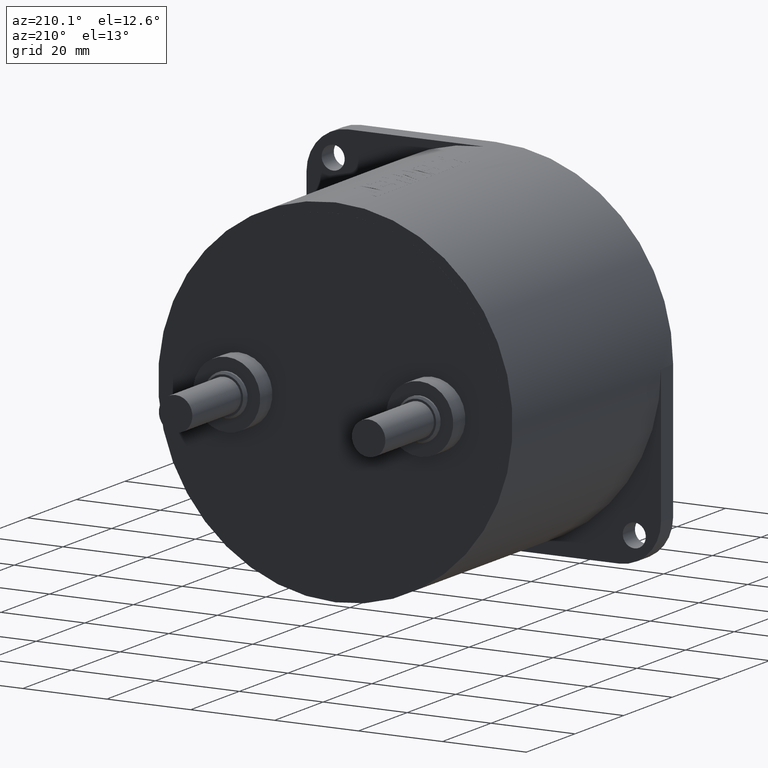
[diagram: clean part render]
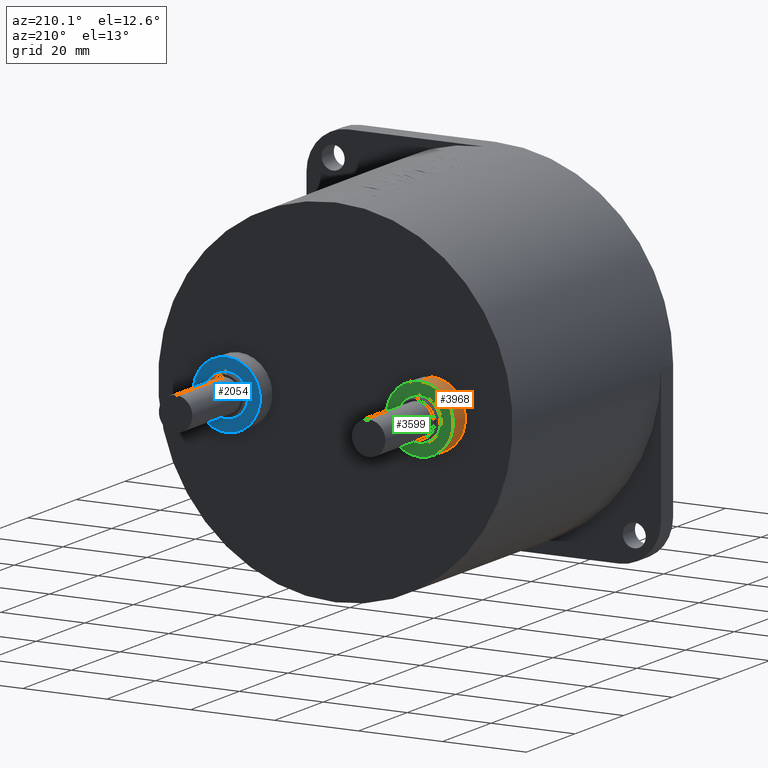
[diagram: same view with three faces highlighted in distinct colors, each labeled with its STEP entity id]
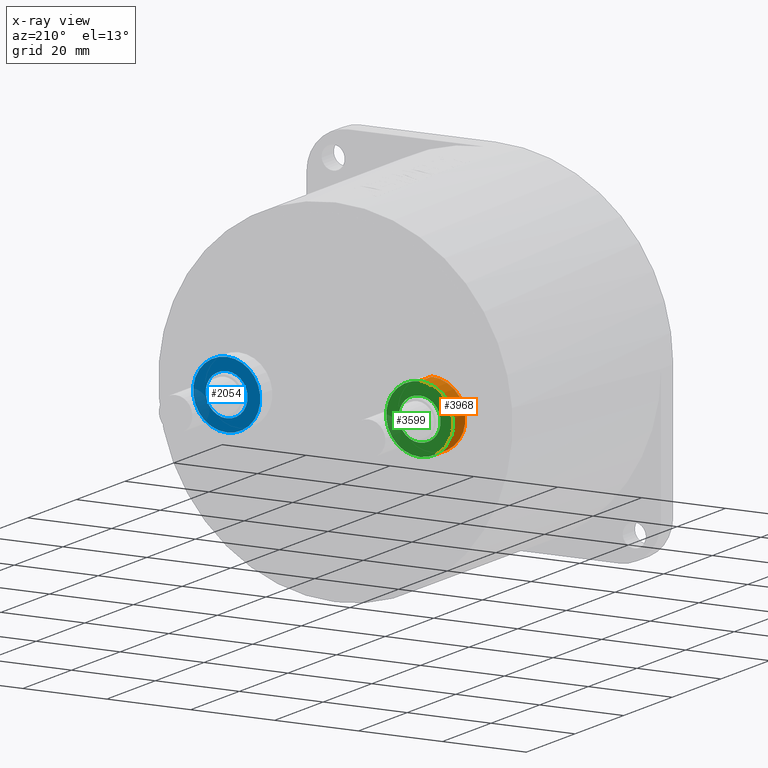
[diagram: x-ray of the same camera — body ghosted, the three highlighted faces saturated]
A machine part, auxiliary view with three faces highlighted in distinct colors.
The next image is the same camera in x-ray (body ghosted, the three faces saturated) — at least one of them is partly hidden behind the body in this view.
Their STEP definitions:

[orange] entity #3968 — the highlighted cylindrical surface (partial cylindrical patch) has radius 8 mm, axis along (-0, -1, -0).
#11 = CARTESIAN_POINT ( 'NONE',  ( -23.00000000000000000, 66.00500000000001000, -8.000000000000001800 ) ) ;
#85 = CYLINDRICAL_SURFACE ( 'NONE', #752, 8.000000000000001800 ) ;
#183 = VERTEX_POINT ( 'NONE', #2508 ) ;
#241 = AXIS2_PLACEMENT_3D ( 'NONE', #3336, #1099, #3401 ) ;
#430 = CARTESIAN_POINT ( 'NONE',  ( -23.00000000000000000, 71.00000000000001400, 0.0000000000000000000 ) ) ;
#455 = CARTESIAN_POINT ( 'NONE',  ( -23.00000000000000000, 71.00000000000001400, -8.000000000000001800 ) ) ;
#752 = AXIS2_PLACEMENT_3D ( 'NONE', #430, #2658, #3275 ) ;
#791 = DIRECTION ( 'NONE',  ( 0.0000000000000000000, 1.000000000000000000, 0.0000000000000000000 ) ) ;
#1099 = DIRECTION ( 'NONE',  ( 0.0000000000000000000, 1.000000000000000000, 0.0000000000000000000 ) ) ;
#1322 = ORIENTED_EDGE ( 'NONE', *, *, #2412, .F. ) ;
#1332 = CIRCLE ( 'NONE', #241, 8.000000000000001800 ) ;
#1581 = EDGE_CURVE ( 'NONE', #2086, #183, #1906, .T. ) ;
#1675 = EDGE_CURVE ( 'NONE', #2455, #2058, #2861, .T. ) ;
#1773 = DIRECTION ( 'NONE',  ( -0.0000000000000000000, -1.000000000000000000, -0.0000000000000000000 ) ) ;
#1869 = EDGE_CURVE ( 'NONE', #2058, #183, #1332, .T. ) ;
#1902 = CARTESIAN_POINT ( 'NONE',  ( -23.00000000000000000, 71.00000000000001400, 8.000000000000001800 ) ) ;
#1906 = LINE ( 'NONE', #2351, #4100 ) ;
#1920 = ORIENTED_EDGE ( 'NONE', *, *, #1869, .T. ) ;
#2037 = DIRECTION ( 'NONE',  ( 0.0000000000000000000, 0.0000000000000000000, 1.000000000000000000 ) ) ;
#2058 = VERTEX_POINT ( 'NONE', #11 ) ;
#2078 = EDGE_LOOP ( 'NONE', ( #3358, #1322, #3117, #1920 ) ) ;
#2086 = VERTEX_POINT ( 'NONE', #1902 ) ;
#2351 = CARTESIAN_POINT ( 'NONE',  ( -23.00000000000000000, 71.00000000000001400, 8.000000000000001800 ) ) ;
#2377 = CARTESIAN_POINT ( 'NONE',  ( -23.00000000000000000, 71.00000000000001400, 0.0000000000000000000 ) ) ;
#2412 = EDGE_CURVE ( 'NONE', #2455, #2086, #2649, .T. ) ;
#2455 = VERTEX_POINT ( 'NONE', #455 ) ;
#2508 = CARTESIAN_POINT ( 'NONE',  ( -23.00000000000000000, 66.00500000000001000, 8.000000000000001800 ) ) ;
#2649 = CIRCLE ( 'NONE', #3580, 8.000000000000001800 ) ;
#2658 = DIRECTION ( 'NONE',  ( -0.0000000000000000000, -1.000000000000000000, -0.0000000000000000000 ) ) ;
#2729 = CARTESIAN_POINT ( 'NONE',  ( -23.00000000000000000, 71.00000000000001400, -8.000000000000001800 ) ) ;
#2861 = LINE ( 'NONE', #2729, #3465 ) ;
#2950 = DIRECTION ( 'NONE',  ( -0.0000000000000000000, -1.000000000000000000, -0.0000000000000000000 ) ) ;
#3117 = ORIENTED_EDGE ( 'NONE', *, *, #1675, .T. ) ;
#3275 = DIRECTION ( 'NONE',  ( 0.0000000000000000000, 0.0000000000000000000, -1.000000000000000000 ) ) ;
#3336 = CARTESIAN_POINT ( 'NONE',  ( -23.00000000000000000, 66.00500000000001000, 0.0000000000000000000 ) ) ;
#3358 = ORIENTED_EDGE ( 'NONE', *, *, #1581, .F. ) ;
#3401 = DIRECTION ( 'NONE',  ( 0.0000000000000000000, 0.0000000000000000000, 1.000000000000000000 ) ) ;
#3465 = VECTOR ( 'NONE', #1773, 1000.000000000000000 ) ;
#3580 = AXIS2_PLACEMENT_3D ( 'NONE', #2377, #791, #2037 ) ;
#3968 = ADVANCED_FACE ( 'NONE', ( #4082 ), #85, .T. ) ;
#4082 = FACE_OUTER_BOUND ( 'NONE', #2078, .T. ) ;
#4100 = VECTOR ( 'NONE', #2950, 1000.000000000000000 ) ;

[blue] entity #2054 — the highlighted planar face has unit normal (0, 1, 0).
#26 = VERTEX_POINT ( 'NONE', #2057 ) ;
#55 = EDGE_CURVE ( 'NONE', #4054, #921, #3007, .T. ) ;
#79 = AXIS2_PLACEMENT_3D ( 'NONE', #2969, #2952, #693 ) ;
#215 = EDGE_CURVE ( 'NONE', #890, #26, #1376, .T. ) ;
#396 = ORIENTED_EDGE ( 'NONE', *, *, #55, .F. ) ;
#606 = AXIS2_PLACEMENT_3D ( 'NONE', #3273, #697, #2621 ) ;
#693 = DIRECTION ( 'NONE',  ( 0.0000000000000000000, 0.0000000000000000000, 1.000000000000000000 ) ) ;
#697 = DIRECTION ( 'NONE',  ( -0.0000000000000000000, -1.000000000000000000, -0.0000000000000000000 ) ) ;
#887 = CARTESIAN_POINT ( 'NONE',  ( 23.00000000000000000, 71.00000000000001400, 0.0000000000000000000 ) ) ;
#890 = VERTEX_POINT ( 'NONE', #3036 ) ;
#921 = VERTEX_POINT ( 'NONE', #3132 ) ;
#1000 = FACE_BOUND ( 'NONE', #3627, .T. ) ;
#1086 = CARTESIAN_POINT ( 'NONE',  ( 23.00000000000000000, 71.00000000000001400, 0.0000000000000000000 ) ) ;
#1207 = DIRECTION ( 'NONE',  ( 0.0000000000000000000, 0.0000000000000000000, 1.000000000000000000 ) ) ;
#1274 = ORIENTED_EDGE ( 'NONE', *, *, #2009, .F. ) ;
#1376 = CIRCLE ( 'NONE', #79, 5.000000000000000000 ) ;
#1593 = PLANE ( 'NONE',  #3262 ) ;
#1820 = AXIS2_PLACEMENT_3D ( 'NONE', #887, #3480, #1207 ) ;
#1926 = DIRECTION ( 'NONE',  ( 0.0000000000000000000, 1.000000000000000000, 0.0000000000000000000 ) ) ;
#2009 = EDGE_CURVE ( 'NONE', #26, #890, #3052, .T. ) ;
#2054 = ADVANCED_FACE ( 'NONE', ( #1000, #2101 ), #1593, .T. ) ;
#2057 = CARTESIAN_POINT ( 'NONE',  ( 23.00000000000000000, 71.00000000000001400, -5.000000000000000000 ) ) ;
#2070 = DIRECTION ( 'NONE',  ( 0.0000000000000000000, 0.0000000000000000000, 1.000000000000000000 ) ) ;
#2101 = FACE_OUTER_BOUND ( 'NONE', #3046, .T. ) ;
#2242 = AXIS2_PLACEMENT_3D ( 'NONE', #1086, #3995, #2070 ) ;
#2253 = EDGE_CURVE ( 'NONE', #921, #4054, #3743, .T. ) ;
#2312 = ORIENTED_EDGE ( 'NONE', *, *, #2253, .F. ) ;
#2556 = DIRECTION ( 'NONE',  ( 0.0000000000000000000, 0.0000000000000000000, 1.000000000000000000 ) ) ;
#2621 = DIRECTION ( 'NONE',  ( 0.0000000000000000000, 0.0000000000000000000, 1.000000000000000000 ) ) ;
#2952 = DIRECTION ( 'NONE',  ( 0.0000000000000000000, 1.000000000000000000, 0.0000000000000000000 ) ) ;
#2969 = CARTESIAN_POINT ( 'NONE',  ( 23.00000000000000000, 71.00000000000001400, 0.0000000000000000000 ) ) ;
#3007 = CIRCLE ( 'NONE', #2242, 8.000000000000001800 ) ;
#3036 = CARTESIAN_POINT ( 'NONE',  ( 23.00000000000000000, 71.00000000000001400, 5.000000000000000000 ) ) ;
#3046 = EDGE_LOOP ( 'NONE', ( #2312, #396 ) ) ;
#3052 = CIRCLE ( 'NONE', #1820, 5.000000000000000000 ) ;
#3132 = CARTESIAN_POINT ( 'NONE',  ( 23.00000000000000000, 71.00000000000001400, -8.000000000000001800 ) ) ;
#3262 = AXIS2_PLACEMENT_3D ( 'NONE', #4117, #1926, #2556 ) ;
#3273 = CARTESIAN_POINT ( 'NONE',  ( 23.00000000000000000, 71.00000000000001400, 0.0000000000000000000 ) ) ;
#3334 = CARTESIAN_POINT ( 'NONE',  ( 23.00000000000000000, 71.00000000000001400, 8.000000000000001800 ) ) ;
#3480 = DIRECTION ( 'NONE',  ( 0.0000000000000000000, 1.000000000000000000, 0.0000000000000000000 ) ) ;
#3563 = ORIENTED_EDGE ( 'NONE', *, *, #215, .F. ) ;
#3627 = EDGE_LOOP ( 'NONE', ( #1274, #3563 ) ) ;
#3743 = CIRCLE ( 'NONE', #606, 8.000000000000001800 ) ;
#3995 = DIRECTION ( 'NONE',  ( -0.0000000000000000000, -1.000000000000000000, -0.0000000000000000000 ) ) ;
#4054 = VERTEX_POINT ( 'NONE', #3334 ) ;
#4117 = CARTESIAN_POINT ( 'NONE',  ( 23.00000000000000000, 71.00000000000001400, 0.0000000000000000000 ) ) ;

[green] entity #3599 — the highlighted planar face has unit normal (0, 1, 0).
#364 = AXIS2_PLACEMENT_3D ( 'NONE', #2825, #3138, #1213 ) ;
#381 = EDGE_CURVE ( 'NONE', #1404, #652, #2296, .T. ) ;
#455 = CARTESIAN_POINT ( 'NONE',  ( -23.00000000000000000, 71.00000000000001400, -8.000000000000001800 ) ) ;
#468 = AXIS2_PLACEMENT_3D ( 'NONE', #759, #3626, #3664 ) ;
#652 = VERTEX_POINT ( 'NONE', #1868 ) ;
#661 = EDGE_CURVE ( 'NONE', #2086, #2455, #801, .T. ) ;
#759 = CARTESIAN_POINT ( 'NONE',  ( -23.00000000000000000, 71.00000000000001400, 0.0000000000000000000 ) ) ;
#791 = DIRECTION ( 'NONE',  ( 0.0000000000000000000, 1.000000000000000000, 0.0000000000000000000 ) ) ;
#796 = CARTESIAN_POINT ( 'NONE',  ( -23.00000000000000000, 71.00000000000001400, 0.0000000000000000000 ) ) ;
#801 = CIRCLE ( 'NONE', #364, 8.000000000000001800 ) ;
#854 = EDGE_CURVE ( 'NONE', #652, #1404, #1165, .T. ) ;
#981 = EDGE_LOOP ( 'NONE', ( #1969, #2294 ) ) ;
#1165 = CIRCLE ( 'NONE', #3256, 5.000000000000000000 ) ;
#1213 = DIRECTION ( 'NONE',  ( 0.0000000000000000000, 0.0000000000000000000, 1.000000000000000000 ) ) ;
#1341 = ORIENTED_EDGE ( 'NONE', *, *, #854, .F. ) ;
#1404 = VERTEX_POINT ( 'NONE', #3531 ) ;
#1598 = FACE_BOUND ( 'NONE', #2121, .T. ) ;
#1868 = CARTESIAN_POINT ( 'NONE',  ( -23.00000000000000000, 71.00000000000001400, 5.000000000000000000 ) ) ;
#1894 = CARTESIAN_POINT ( 'NONE',  ( -23.00000000000000000, 71.00000000000001400, 0.0000000000000000000 ) ) ;
#1902 = CARTESIAN_POINT ( 'NONE',  ( -23.00000000000000000, 71.00000000000001400, 8.000000000000001800 ) ) ;
#1945 = FACE_OUTER_BOUND ( 'NONE', #981, .T. ) ;
#1969 = ORIENTED_EDGE ( 'NONE', *, *, #2412, .T. ) ;
#2037 = DIRECTION ( 'NONE',  ( 0.0000000000000000000, 0.0000000000000000000, 1.000000000000000000 ) ) ;
#2086 = VERTEX_POINT ( 'NONE', #1902 ) ;
#2099 = DIRECTION ( 'NONE',  ( 0.0000000000000000000, 0.0000000000000000000, 1.000000000000000000 ) ) ;
#2121 = EDGE_LOOP ( 'NONE', ( #3805, #1341 ) ) ;
#2294 = ORIENTED_EDGE ( 'NONE', *, *, #661, .T. ) ;
#2296 = CIRCLE ( 'NONE', #468, 5.000000000000000000 ) ;
#2377 = CARTESIAN_POINT ( 'NONE',  ( -23.00000000000000000, 71.00000000000001400, 0.0000000000000000000 ) ) ;
#2412 = EDGE_CURVE ( 'NONE', #2455, #2086, #2649, .T. ) ;
#2455 = VERTEX_POINT ( 'NONE', #455 ) ;
#2563 = PLANE ( 'NONE',  #3964 ) ;
#2649 = CIRCLE ( 'NONE', #3580, 8.000000000000001800 ) ;
#2825 = CARTESIAN_POINT ( 'NONE',  ( -23.00000000000000000, 71.00000000000001400, 0.0000000000000000000 ) ) ;
#3138 = DIRECTION ( 'NONE',  ( 0.0000000000000000000, 1.000000000000000000, 0.0000000000000000000 ) ) ;
#3256 = AXIS2_PLACEMENT_3D ( 'NONE', #796, #4011, #2099 ) ;
#3508 = DIRECTION ( 'NONE',  ( 0.0000000000000000000, 1.000000000000000000, 0.0000000000000000000 ) ) ;
#3531 = CARTESIAN_POINT ( 'NONE',  ( -23.00000000000000000, 71.00000000000001400, -5.000000000000000000 ) ) ;
#3580 = AXIS2_PLACEMENT_3D ( 'NONE', #2377, #791, #2037 ) ;
#3599 = ADVANCED_FACE ( 'NONE', ( #1945, #1598 ), #2563, .T. ) ;
#3626 = DIRECTION ( 'NONE',  ( 0.0000000000000000000, 1.000000000000000000, 0.0000000000000000000 ) ) ;
#3664 = DIRECTION ( 'NONE',  ( 0.0000000000000000000, 0.0000000000000000000, 1.000000000000000000 ) ) ;
#3805 = ORIENTED_EDGE ( 'NONE', *, *, #381, .F. ) ;
#3838 = DIRECTION ( 'NONE',  ( 0.0000000000000000000, -0.0000000000000000000, 1.000000000000000000 ) ) ;
#3964 = AXIS2_PLACEMENT_3D ( 'NONE', #1894, #3508, #3838 ) ;
#4011 = DIRECTION ( 'NONE',  ( 0.0000000000000000000, 1.000000000000000000, 0.0000000000000000000 ) ) ;